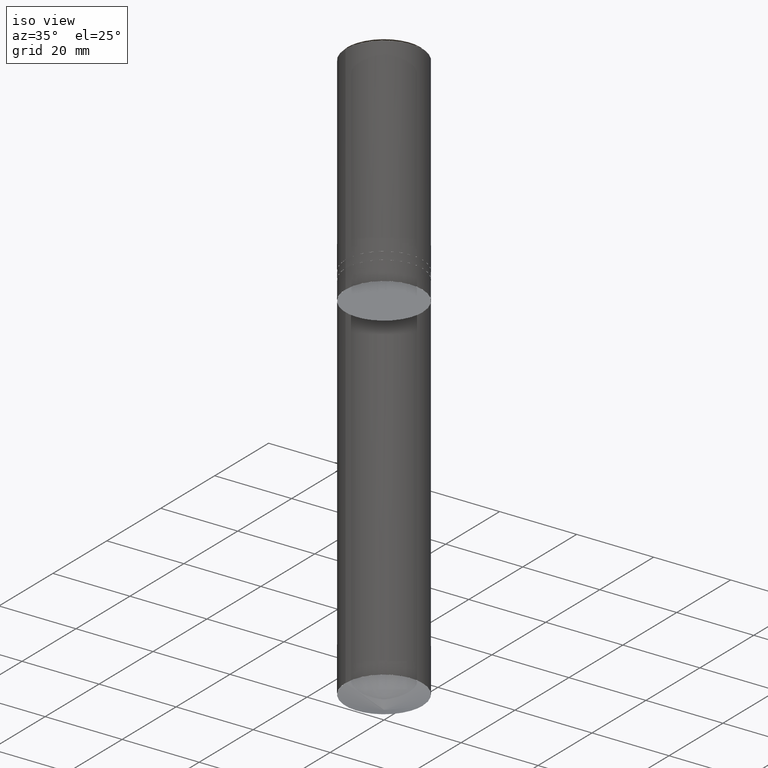
[diagram: clean part render]
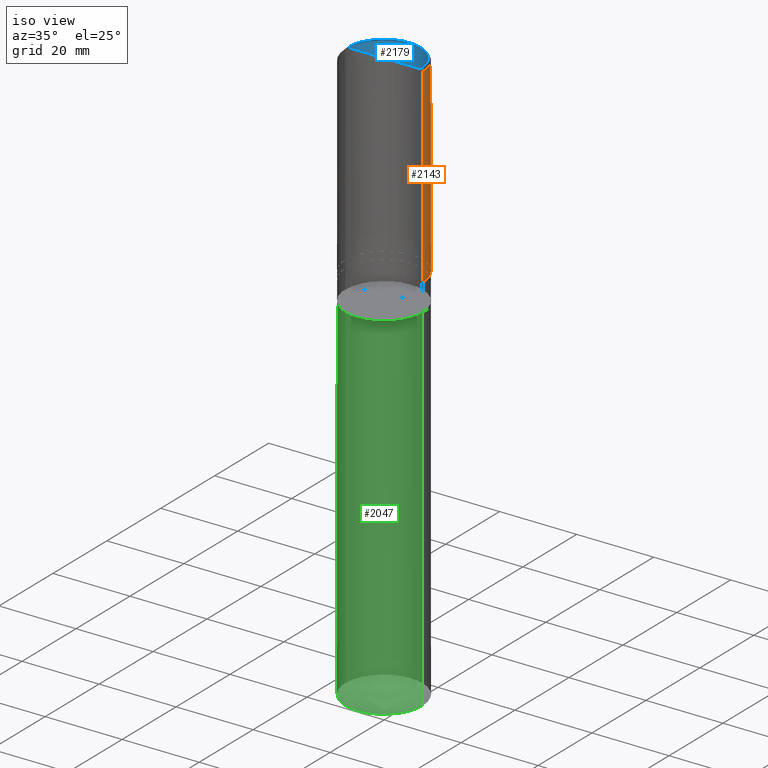
[diagram: same view with three faces highlighted in distinct colors, each labeled with its STEP entity id]
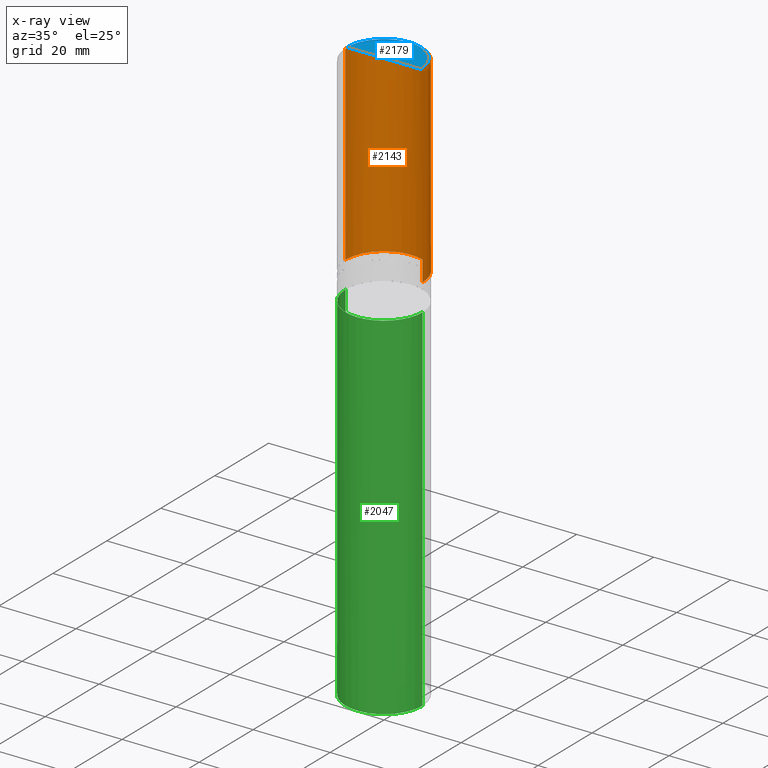
[diagram: x-ray of the same camera — body ghosted, the three highlighted faces saturated]
A machine part, iso view with three faces highlighted in distinct colors.
The next image is the same camera in x-ray (body ghosted, the three faces saturated) — at least one of them is partly hidden behind the body in this view.
Their STEP definitions:

[orange] entity #2143 — the highlighted face is a freeform B-spline surface patch.
#1927=CARTESIAN_POINT('',(10.0,0.0,0.0));
#1928=CARTESIAN_POINT('',(10.0,10.0,0.0));
#1929=CARTESIAN_POINT('',(0.0,10.0,0.0));
#1930=CARTESIAN_POINT('',(-10.0,10.0,0.0));
#1931=CARTESIAN_POINT('',(-10.0,0.0,0.0));
#1932=CARTESIAN_POINT('',(10.0,0.0,49.5));
#1933=CARTESIAN_POINT('',(10.0,10.0,49.5));
#1934=CARTESIAN_POINT('',(0.0,10.0,49.5));
#1935=CARTESIAN_POINT('',(-10.0,10.0,49.5));
#1936=CARTESIAN_POINT('',(-10.0,0.0,49.5));
#2124=(
BOUNDED_SURFACE()
B_SPLINE_SURFACE(1,2,(
(#1927,#1928,#1929,#1930,#1931),
(#1932,#1933,#1934,#1935,#1936)
), .UNSPECIFIED.,.F.,.F.,.F.)
B_SPLINE_SURFACE_WITH_KNOTS((2,2),(3,2,3),(
0.0,1.0),(
0.0,0.5,1.0), .UNSPECIFIED.)
GEOMETRIC_REPRESENTATION_ITEM()
RATIONAL_B_SPLINE_SURFACE(((1.0,0.707106781187,1.0,0.707106781187,1.0),
(1.0,0.707106781187,1.0,0.707106781187,1.0)
))
REPRESENTATION_ITEM('')
SURFACE()
);
#2125=(
BOUNDED_CURVE()
B_SPLINE_CURVE(2,(#1931,#1930,#1929,#1928,#1927),.UNSPECIFIED.,.F.,.F.)
B_SPLINE_CURVE_WITH_KNOTS((3,2,3),
(0.0,0.5,1.0),.UNSPECIFIED.)
CURVE()
GEOMETRIC_REPRESENTATION_ITEM()
RATIONAL_B_SPLINE_CURVE((1.0,0.707106781187,1.0,0.707106781187,1.0))
REPRESENTATION_ITEM('')
);
#2126=(
BOUNDED_CURVE()
B_SPLINE_CURVE(1,(#1927,#1932),.UNSPECIFIED.,.F.,.F.)
B_SPLINE_CURVE_WITH_KNOTS((2,2),
(0.0,1.0),.UNSPECIFIED.)
CURVE()
GEOMETRIC_REPRESENTATION_ITEM()
RATIONAL_B_SPLINE_CURVE((1.0,1.0))
REPRESENTATION_ITEM('')
);
#2127=(
BOUNDED_CURVE()
B_SPLINE_CURVE(2,(#1932,#1933,#1934,#1935,#1936),.UNSPECIFIED.,.F.,.F.)
B_SPLINE_CURVE_WITH_KNOTS((3,2,3),
(0.0,0.5,1.0),.UNSPECIFIED.)
CURVE()
GEOMETRIC_REPRESENTATION_ITEM()
RATIONAL_B_SPLINE_CURVE((1.0,0.707106781187,1.0,0.707106781187,1.0))
REPRESENTATION_ITEM('')
);
#2128=(
BOUNDED_CURVE()
B_SPLINE_CURVE(1,(#1936,#1931),.UNSPECIFIED.,.F.,.F.)
B_SPLINE_CURVE_WITH_KNOTS((2,2),
(0.0,1.0),.UNSPECIFIED.)
CURVE()
GEOMETRIC_REPRESENTATION_ITEM()
RATIONAL_B_SPLINE_CURVE((1.0,1.0))
REPRESENTATION_ITEM('')
);
#2129=VERTEX_POINT('',#1927);
#2130=VERTEX_POINT('',#1931);
#2131=VERTEX_POINT('',#1932);
#2132=VERTEX_POINT('',#1936);
#2133=EDGE_CURVE('',#2130,#2129,#2125,.T.);
#2134=EDGE_CURVE('',#2129,#2131,#2126,.T.);
#2135=EDGE_CURVE('',#2131,#2132,#2127,.T.);
#2136=EDGE_CURVE('',#2132,#2130,#2128,.T.);
#2137=ORIENTED_EDGE('',*,*,#2133,.T.);
#2138=ORIENTED_EDGE('',*,*,#2134,.T.);
#2139=ORIENTED_EDGE('',*,*,#2135,.T.);
#2140=ORIENTED_EDGE('',*,*,#2136,.T.);
#2141=EDGE_LOOP('',(#2137,#2138,#2139,#2140));
#2142=FACE_OUTER_BOUND('',#2141,.T.);
#2143=ADVANCED_FACE('',(#2142),#2124,.T.);

[blue] entity #2179 — the highlighted face is a freeform B-spline surface patch.
#1937=CARTESIAN_POINT('',(9.5,0.0,50.0));
#1938=CARTESIAN_POINT('',(9.5,9.5,50.0));
#1939=CARTESIAN_POINT('',(0.0,9.5,50.0));
#1940=CARTESIAN_POINT('',(-9.5,9.5,50.0));
#1941=CARTESIAN_POINT('',(-9.5,0.0,50.0));
#1942=CARTESIAN_POINT('',(0.0,0.0,50.0));
#2164=(
BOUNDED_SURFACE()
B_SPLINE_SURFACE(1,2,(
(#1937,#1938,#1939,#1940,#1941),
(#1942,#1942,#1942,#1942,#1942)
), .UNSPECIFIED.,.F.,.F.,.F.)
B_SPLINE_SURFACE_WITH_KNOTS((2,2),(3,2,3),(
0.0,1.0),(
0.0,0.5,1.0), .UNSPECIFIED.)
GEOMETRIC_REPRESENTATION_ITEM()
RATIONAL_B_SPLINE_SURFACE(((1.0,0.707106781187,1.0,0.707106781187,1.0),
(1.0,0.707106781187,1.0,0.707106781187,1.0)
))
REPRESENTATION_ITEM('')
SURFACE()
);
#2165=(
BOUNDED_CURVE()
B_SPLINE_CURVE(2,(#1941,#1940,#1939,#1938,#1937),.UNSPECIFIED.,.F.,.F.)
B_SPLINE_CURVE_WITH_KNOTS((3,2,3),
(0.0,0.5,1.0),.UNSPECIFIED.)
CURVE()
GEOMETRIC_REPRESENTATION_ITEM()
RATIONAL_B_SPLINE_CURVE((1.0,0.707106781187,1.0,0.707106781187,1.0))
REPRESENTATION_ITEM('')
);
#2166=(
BOUNDED_CURVE()
B_SPLINE_CURVE(1,(#1937,#1942),.UNSPECIFIED.,.F.,.F.)
B_SPLINE_CURVE_WITH_KNOTS((2,2),
(0.0,1.0),.UNSPECIFIED.)
CURVE()
GEOMETRIC_REPRESENTATION_ITEM()
RATIONAL_B_SPLINE_CURVE((1.0,1.0))
REPRESENTATION_ITEM('')
);
#2167=(
BOUNDED_CURVE()
B_SPLINE_CURVE(1,(#1942,#1941),.UNSPECIFIED.,.F.,.F.)
B_SPLINE_CURVE_WITH_KNOTS((2,2),
(0.0,1.0),.UNSPECIFIED.)
CURVE()
GEOMETRIC_REPRESENTATION_ITEM()
RATIONAL_B_SPLINE_CURVE((1.0,1.0))
REPRESENTATION_ITEM('')
);
#2168=VERTEX_POINT('',#1937);
#2169=VERTEX_POINT('',#1941);
#2170=VERTEX_POINT('',#1942);
#2171=EDGE_CURVE('',#2169,#2168,#2165,.T.);
#2172=EDGE_CURVE('',#2168,#2170,#2166,.T.);
#2173=EDGE_CURVE('',#2170,#2169,#2167,.T.);
#2174=ORIENTED_EDGE('',*,*,#2171,.T.);
#2175=ORIENTED_EDGE('',*,*,#2172,.T.);
#2176=ORIENTED_EDGE('',*,*,#2173,.T.);
#2177=EDGE_LOOP('',(#2174,#2175,#2176));
#2178=FACE_OUTER_BOUND('',#2177,.T.);
#2179=ADVANCED_FACE('',(#2178),#2164,.T.);

[green] entity #2047 — the highlighted face is a freeform B-spline surface patch.
#1905=CARTESIAN_POINT('',(10.0,0.0,-99.360297657338));
#1909=CARTESIAN_POINT('',(-10.0,0.0,-99.360297657338));
#1910=CARTESIAN_POINT('',(10.0,0.0,-7.0));
#1914=CARTESIAN_POINT('',(-10.0,0.0,-7.0));
#1916=CARTESIAN_POINT('',(-10.0,-10.0,-99.360297657338));
#1917=CARTESIAN_POINT('',(0.0,-10.0,-99.360297657338));
#1918=CARTESIAN_POINT('',(10.0,-10.0,-99.360297657338));
#1919=CARTESIAN_POINT('',(-10.0,-10.0,-7.0));
#1920=CARTESIAN_POINT('',(0.0,-10.0,-7.0));
#1921=CARTESIAN_POINT('',(10.0,-10.0,-7.0));
#2028=(
BOUNDED_SURFACE()
B_SPLINE_SURFACE(1,2,(
(#1909,#1916,#1917,#1918,#1905),
(#1914,#1919,#1920,#1921,#1910)
), .UNSPECIFIED.,.F.,.F.,.F.)
B_SPLINE_SURFACE_WITH_KNOTS((2,2),(3,2,3),(
0.0,1.0),(
0.0,0.5,1.0), .UNSPECIFIED.)
GEOMETRIC_REPRESENTATION_ITEM()
RATIONAL_B_SPLINE_SURFACE(((1.0,0.707106781187,1.0,0.707106781187,1.0),
(1.0,0.707106781187,1.0,0.707106781187,1.0)
))
REPRESENTATION_ITEM('')
SURFACE()
);
#2029=(
BOUNDED_CURVE()
B_SPLINE_CURVE(2,(#1905,#1918,#1917,#1916,#1909),.UNSPECIFIED.,.F.,.F.)
B_SPLINE_CURVE_WITH_KNOTS((3,2,3),
(0.0,0.5,1.0),.UNSPECIFIED.)
CURVE()
GEOMETRIC_REPRESENTATION_ITEM()
RATIONAL_B_SPLINE_CURVE((1.0,0.707106781187,1.0,0.707106781187,1.0))
REPRESENTATION_ITEM('')
);
#2030=(
BOUNDED_CURVE()
B_SPLINE_CURVE(1,(#1909,#1914),.UNSPECIFIED.,.F.,.F.)
B_SPLINE_CURVE_WITH_KNOTS((2,2),
(0.0,1.0),.UNSPECIFIED.)
CURVE()
GEOMETRIC_REPRESENTATION_ITEM()
RATIONAL_B_SPLINE_CURVE((1.0,1.0))
REPRESENTATION_ITEM('')
);
#2031=(
BOUNDED_CURVE()
B_SPLINE_CURVE(2,(#1914,#1919,#1920,#1921,#1910),.UNSPECIFIED.,.F.,.F.)
B_SPLINE_CURVE_WITH_KNOTS((3,2,3),
(0.0,0.5,1.0),.UNSPECIFIED.)
CURVE()
GEOMETRIC_REPRESENTATION_ITEM()
RATIONAL_B_SPLINE_CURVE((1.0,0.707106781187,1.0,0.707106781187,1.0))
REPRESENTATION_ITEM('')
);
#2032=(
BOUNDED_CURVE()
B_SPLINE_CURVE(1,(#1910,#1905),.UNSPECIFIED.,.F.,.F.)
B_SPLINE_CURVE_WITH_KNOTS((2,2),
(0.0,1.0),.UNSPECIFIED.)
CURVE()
GEOMETRIC_REPRESENTATION_ITEM()
RATIONAL_B_SPLINE_CURVE((1.0,1.0))
REPRESENTATION_ITEM('')
);
#2033=VERTEX_POINT('',#1905);
#2034=VERTEX_POINT('',#1909);
#2035=VERTEX_POINT('',#1910);
#2036=VERTEX_POINT('',#1914);
#2037=EDGE_CURVE('',#2033,#2034,#2029,.T.);
#2038=EDGE_CURVE('',#2034,#2036,#2030,.T.);
#2039=EDGE_CURVE('',#2036,#2035,#2031,.T.);
#2040=EDGE_CURVE('',#2035,#2033,#2032,.T.);
#2041=ORIENTED_EDGE('',*,*,#2037,.T.);
#2042=ORIENTED_EDGE('',*,*,#2038,.T.);
#2043=ORIENTED_EDGE('',*,*,#2039,.T.);
#2044=ORIENTED_EDGE('',*,*,#2040,.T.);
#2045=EDGE_LOOP('',(#2041,#2042,#2043,#2044));
#2046=FACE_OUTER_BOUND('',#2045,.T.);
#2047=ADVANCED_FACE('',(#2046),#2028,.T.);